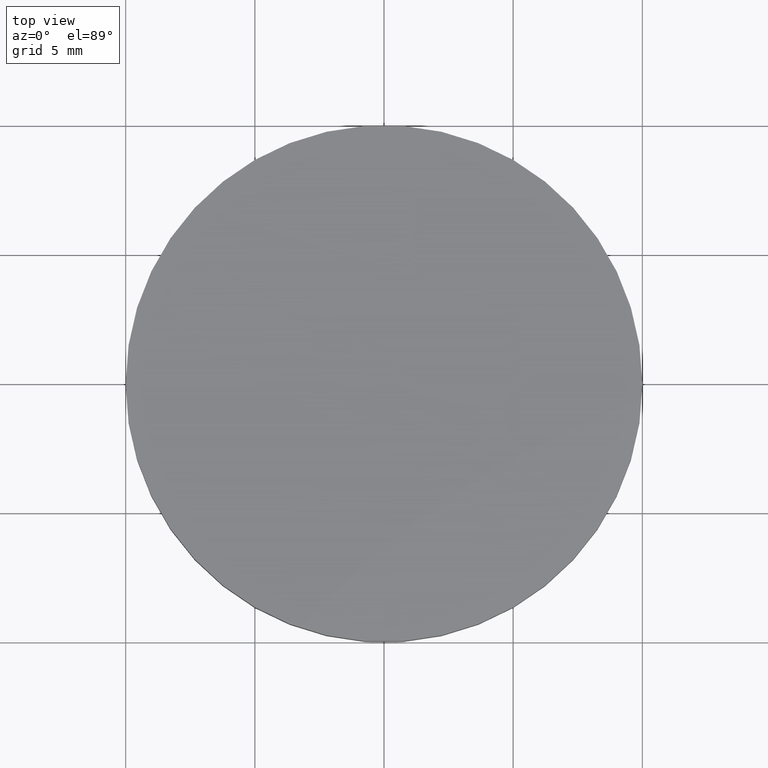
[diagram: clean part render]
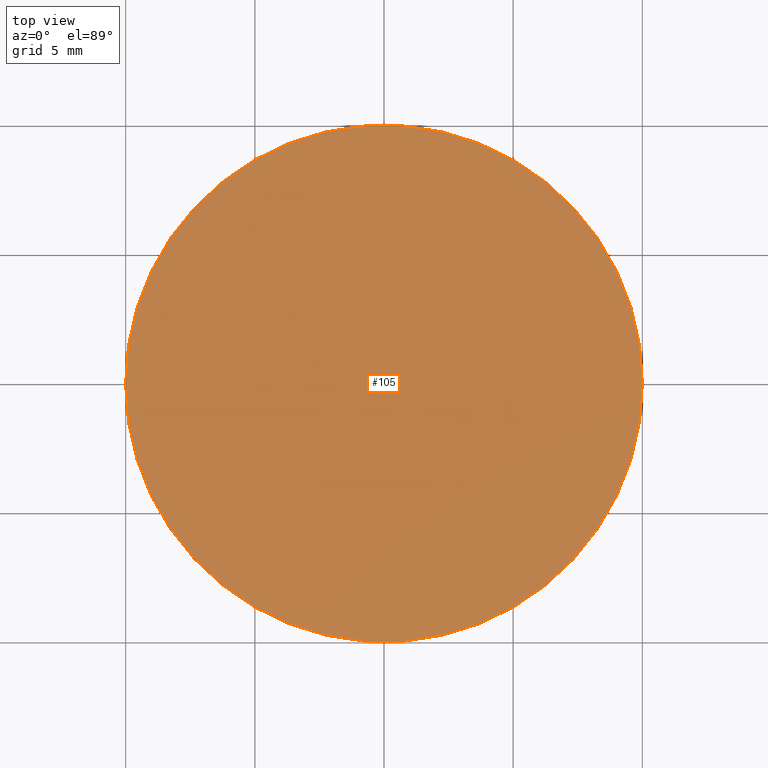
[diagram: same view with one face highlighted and labeled with its STEP entity id]
A machine part, top view. The second image highlights one B-rep face of the part: STEP entity #105.
In plain terms, the highlighted planar face has unit normal (0, 0, 1).
Its self-contained STEP definition (entity closure, byte-faithful):
#1 = DIRECTION ( 'NONE',  ( 1.000000000000000000, 0.0000000000000000000, 0.0000000000000000000 ) ) ;
#3 = DIRECTION ( 'NONE',  ( 0.0000000000000000000, 0.0000000000000000000, 1.000000000000000000 ) ) ;
#5 = CARTESIAN_POINT ( 'NONE',  ( 0.0000000000000000000, 0.0000000000000000000, 2.000000000000000000 ) ) ;
#7 = CIRCLE ( 'NONE', #31, 10.00000000000000000 ) ;
#16 = FACE_OUTER_BOUND ( 'NONE', #79, .T. ) ;
#21 = CARTESIAN_POINT ( 'NONE',  ( -10.00000000000000000, 0.0000000000000000000, 2.000000000000000000 ) ) ;
#22 = ORIENTED_EDGE ( 'NONE', *, *, #101, .T. ) ;
#25 = DIRECTION ( 'NONE',  ( 0.0000000000000000000, 0.0000000000000000000, 1.000000000000000000 ) ) ;
#27 = DIRECTION ( 'NONE',  ( 1.000000000000000000, 0.0000000000000000000, 0.0000000000000000000 ) ) ;
#28 = CARTESIAN_POINT ( 'NONE',  ( 10.00000000000000000, 1.224646799147353300E-015, 2.000000000000000000 ) ) ;
#31 = AXIS2_PLACEMENT_3D ( 'NONE', #45, #25, #27 ) ;
#32 = CARTESIAN_POINT ( 'NONE',  ( 0.0000000000000000000, 0.0000000000000000000, 2.000000000000000000 ) ) ;
#44 = EDGE_CURVE ( 'NONE', #102, #109, #7, .T. ) ;
#45 = CARTESIAN_POINT ( 'NONE',  ( 0.0000000000000000000, 0.0000000000000000000, 2.000000000000000000 ) ) ;
#50 = DIRECTION ( 'NONE',  ( 0.0000000000000000000, 0.0000000000000000000, 1.000000000000000000 ) ) ;
#55 = DIRECTION ( 'NONE',  ( 1.000000000000000000, 0.0000000000000000000, -0.0000000000000000000 ) ) ;
#79 = EDGE_LOOP ( 'NONE', ( #85, #22 ) ) ;
#83 = CIRCLE ( 'NONE', #114, 10.00000000000000000 ) ;
#85 = ORIENTED_EDGE ( 'NONE', *, *, #44, .T. ) ;
#101 = EDGE_CURVE ( 'NONE', #109, #102, #83, .T. ) ;
#102 = VERTEX_POINT ( 'NONE', #21 ) ;
#105 = ADVANCED_FACE ( 'NONE', ( #16 ), #112, .T. ) ;
#109 = VERTEX_POINT ( 'NONE', #28 ) ;
#112 = PLANE ( 'NONE',  #137 ) ;
#114 = AXIS2_PLACEMENT_3D ( 'NONE', #5, #3, #1 ) ;
#137 = AXIS2_PLACEMENT_3D ( 'NONE', #32, #50, #55 ) ;